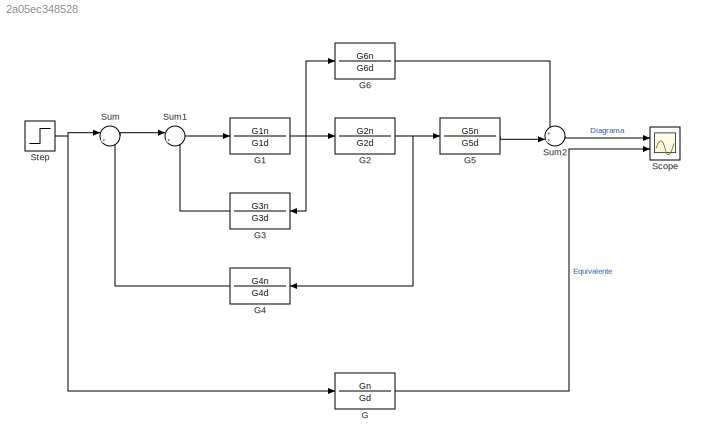
MODEL slx_2a05ec348528
KIND model
CONFIG AbsTol = auto
CONFIG FixedStep = auto
CONFIG MaxStep = auto
CONFIG MinStep = auto
CONFIG RelTol = 1e-3
CONFIG SampleTimeConstraint = Unconstrained
CONFIG Solver = VariableStepAuto
CONFIG SolverMode = SingleTasking
CONFIG SolverName = VariableStepAuto
CONFIG StartTime = 0.0
CONFIG StopTime = 10.0
BLOCK [TransferFcn] G
  Denominator = Gd
  Numerator = Gn
BLOCK [TransferFcn] G1
  Denominator = G1d
  Numerator = G1n
BLOCK [TransferFcn] G2
  Denominator = G2d
  Numerator = G2n
BLOCK [TransferFcn] G3
  Denominator = G3d
  Numerator = G3n
BLOCK [TransferFcn] G4
  Denominator = G4d
  Numerator = G4n
BLOCK [TransferFcn] G5
  Denominator = G5d
  Numerator = G5n
BLOCK [TransferFcn] G6
  Denominator = G6d
  Numerator = G6n
BLOCK [Scope] Scope
  Floating = off
  NumInputPorts = 2
  Ports = [2]
  ScopeSpecificationString = Simulink.scopes.TimeScopeBlockCfg('CurrentConfiguration', extmgr.ConfigurationSet(extmgr.Configuration('Core','General UI',true),extmgr.Configuration('Core','Source UI',true),extmgr.Configuration('Sources','WiredSimulink',true),extmgr.Configuration('Visuals','Time Domain',true,'SerializedDisplays',{struct('MinYLimReal','-0.33185','MaxYLimReal','0.08789','YLabelReal','','MinYLimMag','0.00000','MaxY...<+1493ch>
BLOCK [Step] Step
  SampleTime = 0
BLOCK [Sum] Sum
  Inputs = |+-
  Ports = [2, 1]
BLOCK [Sum] Sum1
  Inputs = |++
  Ports = [2, 1]
BLOCK [Sum] Sum2
  Inputs = ++|
  Ports = [2, 1]
NET G1:1 -> G2:1, G3:1, G6:1
NET G2:1 -> G4:1, G5:1
LINE G3:1 -> Sum1:2
LINE G4:1 -> Sum:2
LINE G5:1 -> Sum2:2
LINE G6:1 -> Sum2:1
LINE G:1 -> Scope:2
NET Step:1 -> G:1, Sum:1
LINE Sum1:1 -> G1:1
LINE Sum2:1 -> Scope:1
LINE Sum:1 -> Sum1:1
note: NET lines group one-source signal fan-out (src -> all destinations, sorted); 1:1 wires keep LINE
